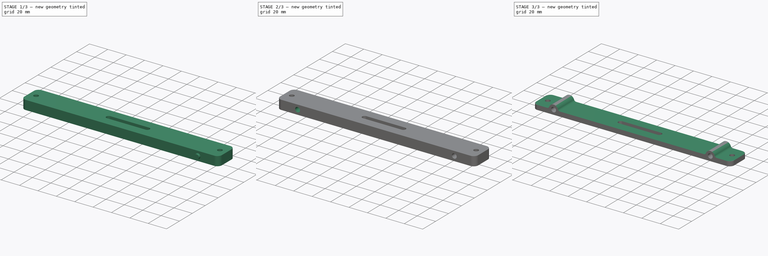
[diagram: build sequence overview — one tinted view per stage of 3, left to right]
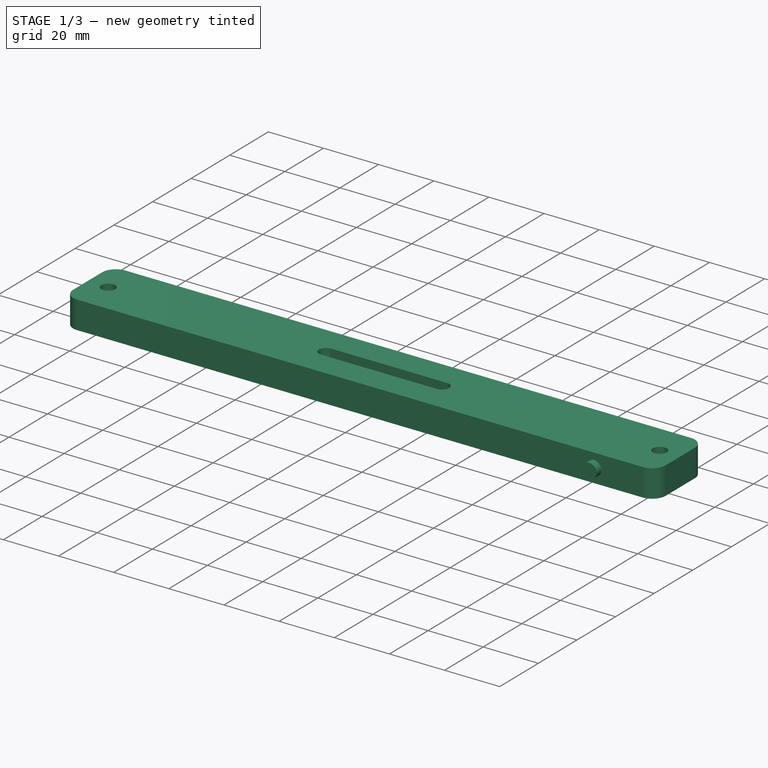
[diagram: stage 1 of 3 — iso view after this stage's code; geometry added in this stage tinted green]
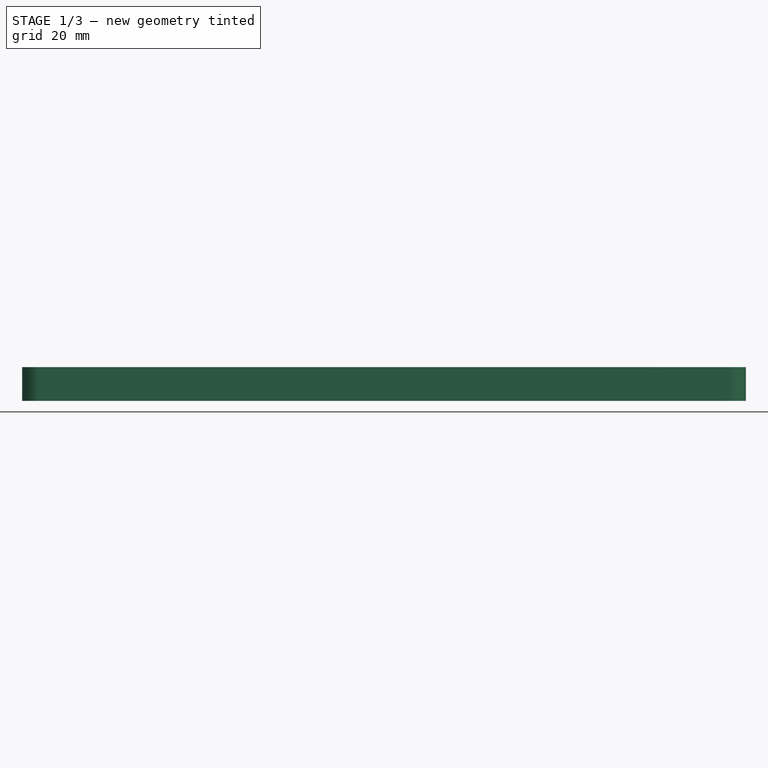
[diagram: stage 1 of 3 — front view after this stage's code; geometry added in this stage tinted green]
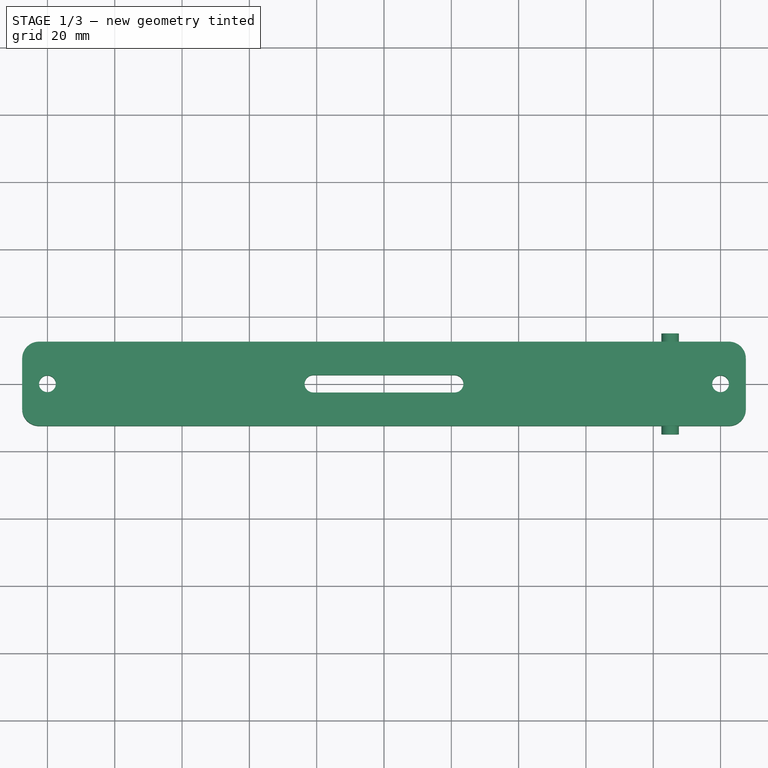
[diagram: stage 1 of 3 — top view after this stage's code; geometry added in this stage tinted green]
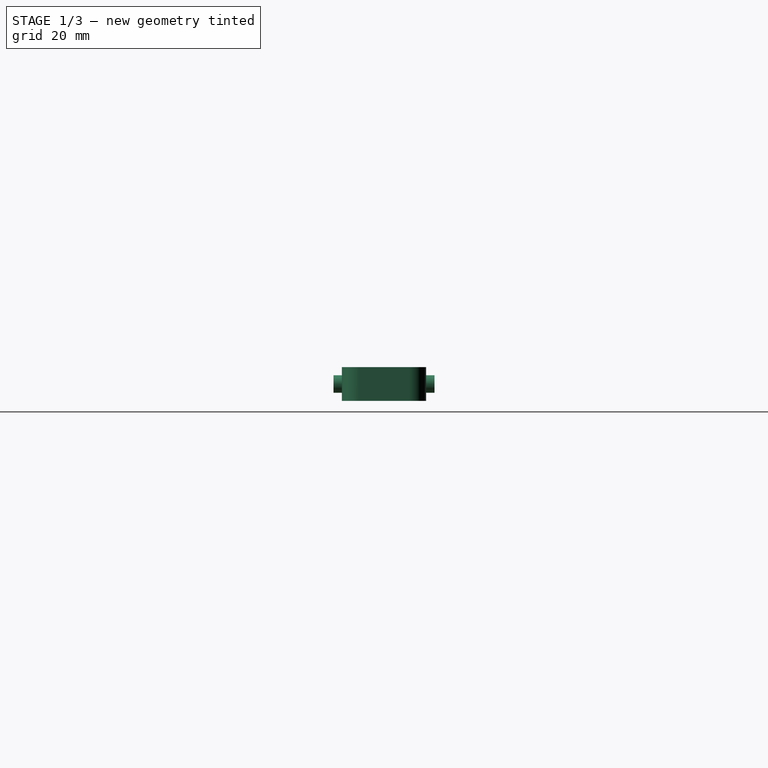
[diagram: stage 1 of 3 — right view after this stage's code; geometry added in this stage tinted green]
FCSTD DOCUMENT  (FreeCAD 0.21R33771 (Git))
Label: SFT-Mk5-Yoke
License: Public Domain
LicenseURL: https://en.wikipedia.org/wiki/Public_domain
objects: PartDesign::Line×4, Part::Cut×3, Sketcher::SketchObject×2, Part::Extrusion×2, Part::Cylinder×2, PartDesign::CoordinateSystem×1, App::Part×1
note: 14 computed .brp shape members not serialized (recipe doc carries the construction recipe); baked Part::Feature solids carry a one-line shape summary decoded from their .brp

FEATURE [PartDesign::CoordinateSystem] LCS_Origin  label="Slot AP"
  AttacherType = Attacher::AttachEngine3D
  AttachmentOffset = pos=(20,0,0) rot=(0,0,1;0rad)
  MapMode = 2
  Placement = pos=(20,0,0) rot=(0,0,1;0rad)
  Support = -> [X_Axis]
FEATURE [Sketcher::SketchObject] Sketch  label="Profile"
  FullyConstrained = true
  MapMode = 5
  Support = -> [XY_Plane]
  sketch-geometry (14):
    g0: LineSegment StartX=-21 StartY=2.6 StartZ=0 EndX=21 EndY=2.6 EndZ=0
    g1: LineSegment StartX=21 StartY=-2.6 StartZ=0 EndX=-21 EndY=-2.6 EndZ=0
    g2: ArcOfCircle CenterX=-21 CenterY=2e-16 CenterZ=0 NormalX=0 NormalY=0 NormalZ=1 AngleXU=0 Radius=2.6 StartAngle=1.5708 EndAngle=4.71239
    g3: ArcOfCircle CenterX=21 CenterY=-2e-16 CenterZ=0 NormalX=0 NormalY=0 NormalZ=1 AngleXU=0 Radius=2.6 StartAngle=4.71239 EndAngle=7.85398
    g4: LineSegment StartX=-102.5 StartY=12.5 StartZ=0 EndX=102.5 EndY=12.5 EndZ=0
    g5: LineSegment StartX=107.5 StartY=7.5 StartZ=0 EndX=107.5 EndY=-7.5 EndZ=0
    g6: LineSegment StartX=102.5 StartY=-12.5 StartZ=0 EndX=-102.5 EndY=-12.5 EndZ=0
    g7: LineSegment StartX=-107.5 StartY=-7.5 StartZ=0 EndX=-107.5 EndY=7.5 EndZ=0
    g8: Circle CenterX=100 CenterY=0 CenterZ=0 NormalX=0 NormalY=0 NormalZ=1 AngleXU=0 Radius=2.5
    g9: Circle CenterX=-100 CenterY=0 CenterZ=0 NormalX=0 NormalY=0 NormalZ=1 AngleXU=0 Radius=2.5
    g10: ArcOfCircle CenterX=102.5 CenterY=-7.5 CenterZ=0 NormalX=0 NormalY=0 NormalZ=1 AngleXU=0 Radius=5 StartAngle=4.71239 EndAngle=6.28319
    g11: ArcOfCircle CenterX=102.5 CenterY=7.5 CenterZ=0 NormalX=0 NormalY=0 NormalZ=1 AngleXU=0 Radius=5 StartAngle=0 EndAngle=1.5708
    g12: ArcOfCircle CenterX=-102.5 CenterY=-7.5 CenterZ=0 NormalX=0 NormalY=0 NormalZ=1 AngleXU=0 Radius=5 StartAngle=3.14159 EndAngle=4.71239
    g13: ArcOfCircle CenterX=-102.5 CenterY=7.5 CenterZ=0 NormalX=0 NormalY=0 NormalZ=1 AngleXU=0 Radius=5 StartAngle=1.5708 EndAngle=3.14159
  constraints (33):
    c: Horizontal(g0)
    c: Horizontal(g1)
    c: Radius(g3) = 2.6
    c: Tangent(g3,g0) = 1.5708
    c: Tangent(g3,g1) = 1.5708
    c: Tangent(g2,g0) = 1.5708
    c: Tangent(g2,g1) = 1.5708
    c: DistanceX(g-1,g3) = 21
    c: Symmetric(g2,g3,g-1)
    c: Horizontal(g4)
    c: Horizontal(g6)
    c: Vertical(g5)
    c: Vertical(g7)
    c: Radius(g8) = 2.5
    c: DistanceX(g8) = 100
    c: Symmetric(g9,g8,g-1)
    c: Equal(g9,g8)
    c: PointOnObject(g9,g-1)
    c: Tangent(g5,g10) = 1.5708
    c: Tangent(g6,g10) = 1.5708
    c: Tangent(g5,g11) = 1.5708
    c: Tangent(g4,g11) = 1.5708
    c: Tangent(g7,g12) = 1.5708
    c: Tangent(g6,g12) = 1.5708
    c: Tangent(g7,g13) = 1.5708
    c: Tangent(g4,g13) = 1.5708
    c: Equal(g13,g12)
    c: Equal(g13,g11)
    c: Equal(g13,g10)
    c: Radius(g13) = 5
    c: DistanceY(g6,g4) = 25
    c: DistanceX(g7,g5) = 215
    c: Symmetric(g11,g12,g-1)
FEATURE [Part::Extrusion] Extrude  label="Pad"
  Base = -> Sketch
  Dir = (0,0,1)
  DirMode = 2
  FaceMakerClass = Part::FaceMakerBullseye
  LengthFwd = 10
  LengthRev = 0
  Solid = true
  Symmetric = false
FEATURE [Part::Cylinder] Cylinder  label="Slider Hole 1"
  Angle = 360
  AttacherType = Attacher::AttachEngine3D
  FirstAngle = 0
  Height = 30
  Placement = pos=(85,15,5) rot=(1,0,0;1.5708rad)
  Radius = 2.6
  SecondAngle = 0
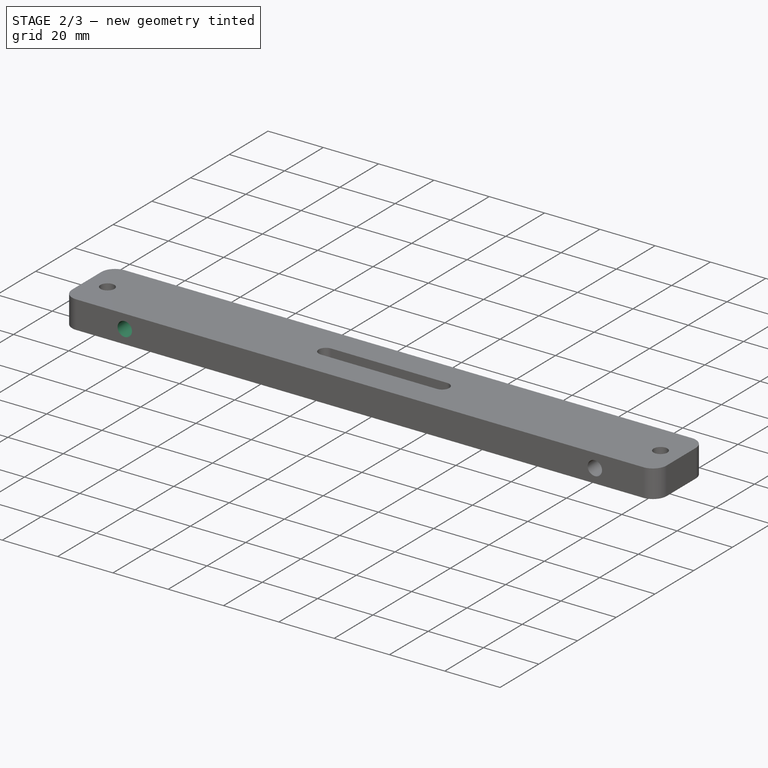
[diagram: stage 2 of 3 — iso view after this stage's code; geometry added in this stage tinted green]
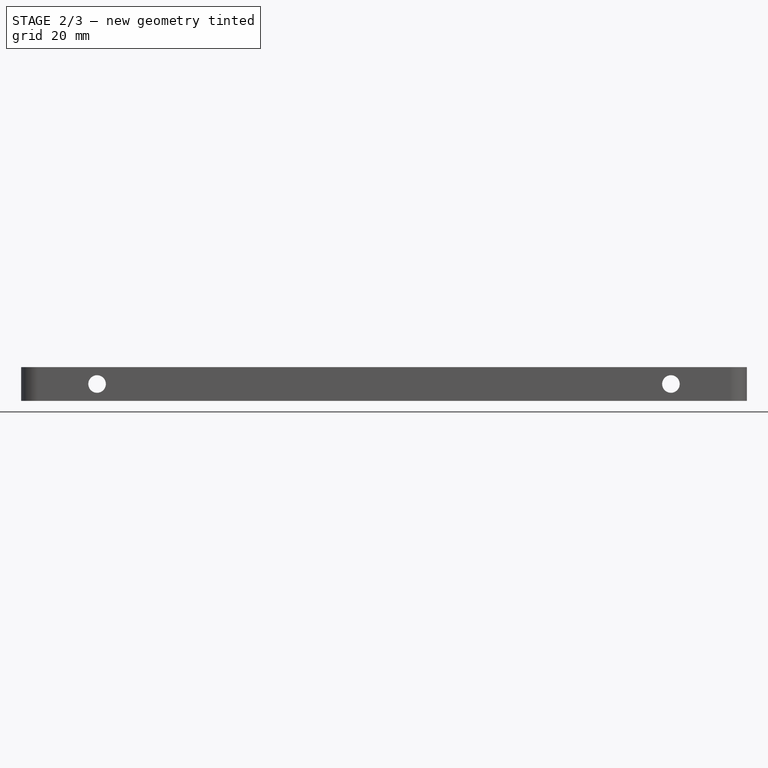
[diagram: stage 2 of 3 — front view after this stage's code; geometry added in this stage tinted green]
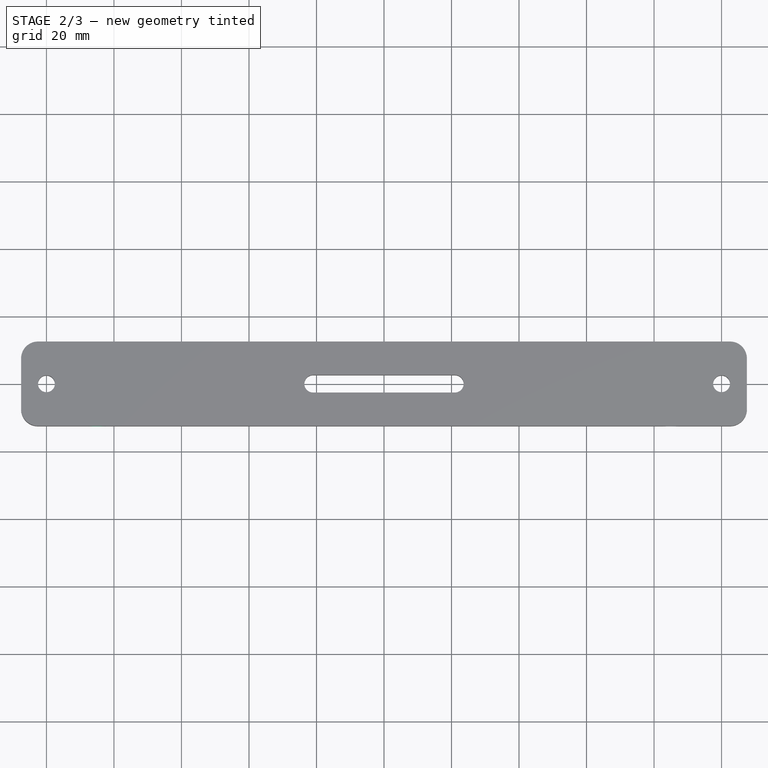
[diagram: stage 2 of 3 — top view after this stage's code; geometry added in this stage tinted green]
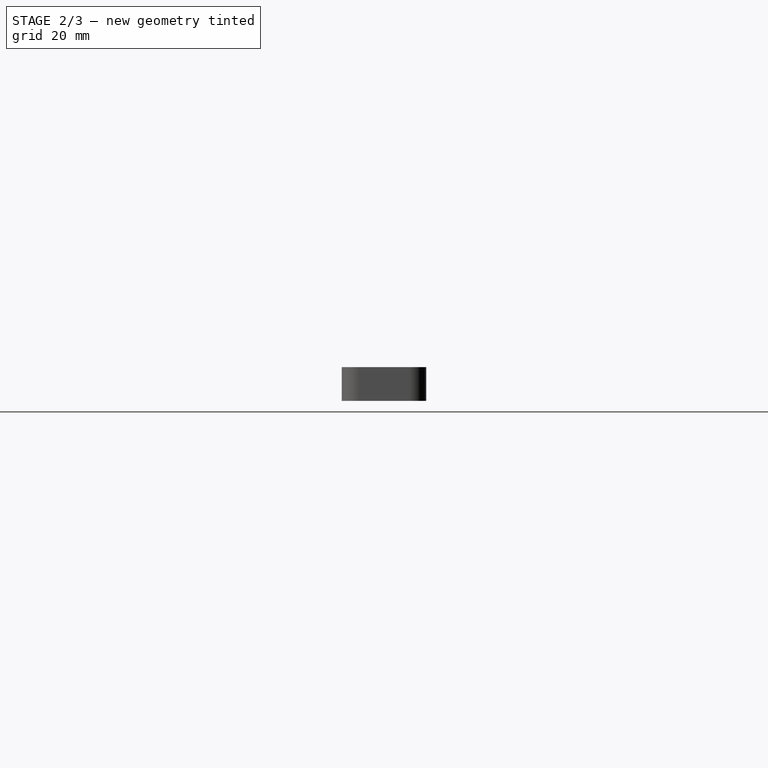
[diagram: stage 2 of 3 — right view after this stage's code; geometry added in this stage tinted green]
FEATURE [Part::Cylinder] Cylinder001  label="Slider Hole 2"
  Angle = 360
  AttacherType = Attacher::AttachEngine3D
  FirstAngle = 0
  Height = 30
  Placement = pos=(-85,15,5) rot=(1,0,0;1.5708rad)
  Radius = 2.6
  SecondAngle = 0
FEATURE [Part::Cut] Cut
  Base = -> Extrude
  Tool = -> Cylinder
FEATURE [Part::Cut] Cut001
  Base = -> Cut
  Tool = -> Cylinder001
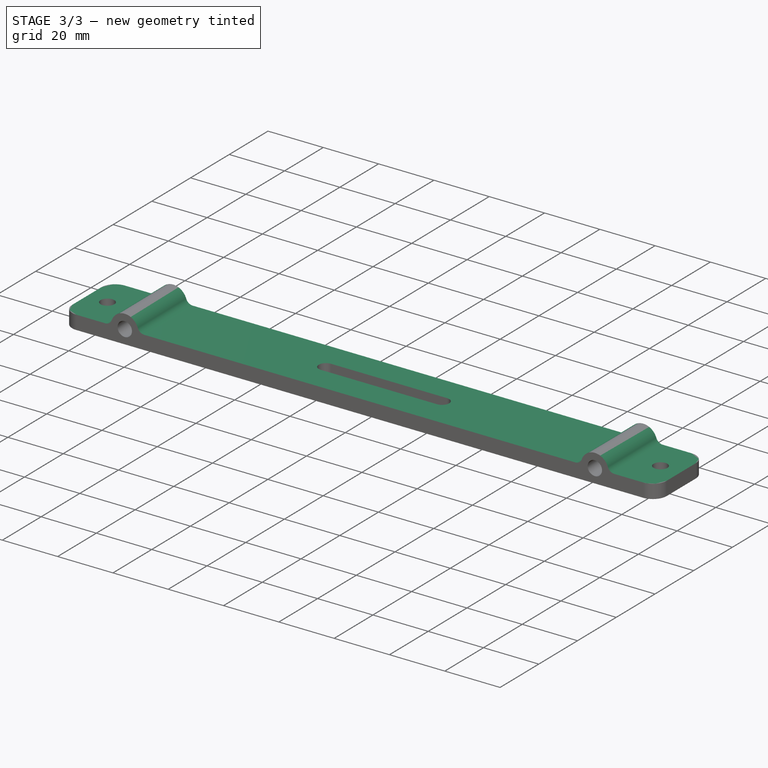
[diagram: stage 3 of 3 — iso view after this stage's code; geometry added in this stage tinted green]
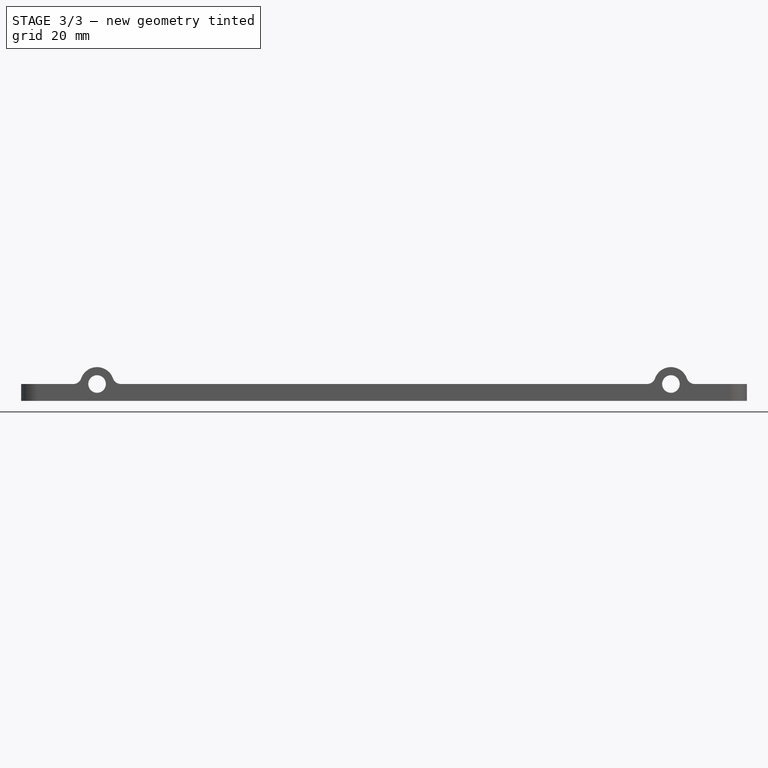
[diagram: stage 3 of 3 — front view after this stage's code; geometry added in this stage tinted green]
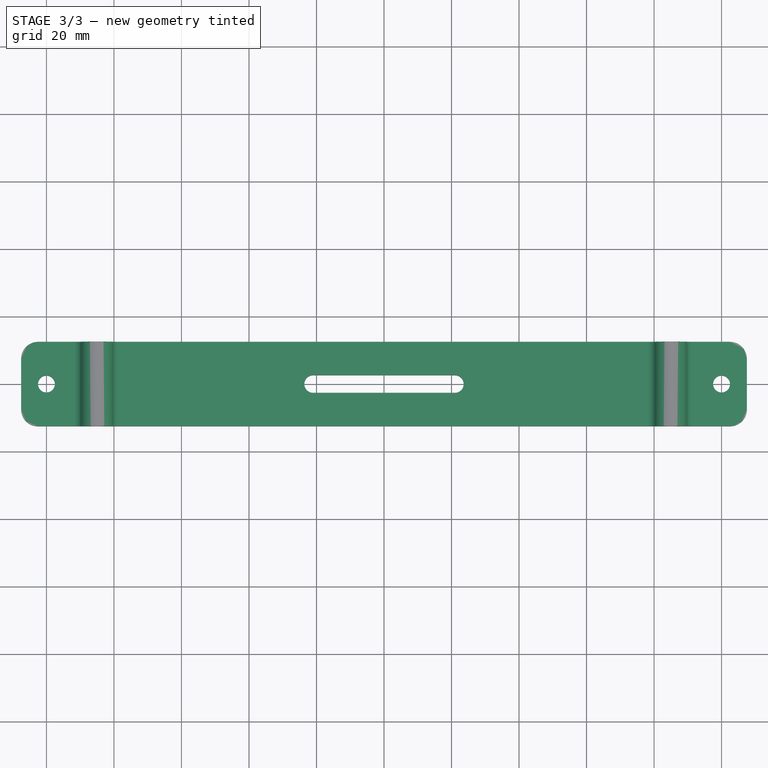
[diagram: stage 3 of 3 — top view after this stage's code; geometry added in this stage tinted green]
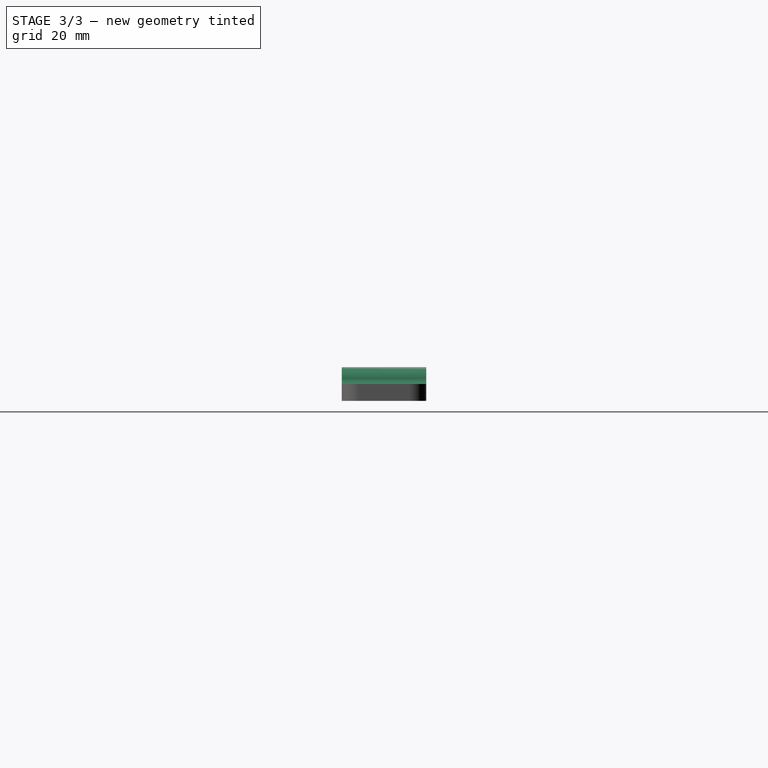
[diagram: stage 3 of 3 — right view after this stage's code; geometry added in this stage tinted green]
FEATURE [PartDesign::Line] HoleAxis_1  label="Slider Axis 1"
  AttacherType = Attacher::AttachEngineLine
  Length = 7.32715
  MapMode = 19
  Placement = pos=(85,-12.5,5) rot=(-1,0,0;1.5708rad)
  ResizeMode = 1
  Support = -> [Cut001]
FEATURE [PartDesign::Line] HoleAxis_2  label="Slider Axis 2"
  AttacherType = Attacher::AttachEngineLine
  Length = 7.32715
  MapMode = 19
  Placement = pos=(-85,-12.5,5) rot=(-1,0,0;1.5708rad)
  ResizeMode = 1
  Support = -> [Cut001]
FEATURE [PartDesign::Line] HoleAxis_3  label="Pushrod Axis Left"
  AttacherType = Attacher::AttachEngineLine
  Length = 7.04534
  MapMode = 19
  Placement = pos=(-100,0,10) rot=(0,0,1;0rad)
  ResizeMode = 1
  Support = -> [Cut001]
FEATURE [PartDesign::Line] HoleAxis_4  label="Pushrod Axis Right"
  AttacherType = Attacher::AttachEngineLine
  Length = 7.04534
  MapMode = 19
  Placement = pos=(100,0,10) rot=(0,0,1;0rad)
  ResizeMode = 1
  Support = -> [Cut001]
FEATURE [Sketcher::SketchObject] Sketch001  label="Pushrod Cut Sketch"
  FullyConstrained = true
  MapMode = 5
  Placement = pos=(0,-12.5,0) rot=(1,0,0;1.5708rad)
  Support = -> [Cut001]
  sketch-geometry (12):
    g0: ArcOfCircle CenterX=85 CenterY=5 CenterZ=0 NormalX=0 NormalY=0 NormalZ=1 AngleXU=0 Radius=5 StartAngle=0.339837 EndAngle=2.80176
    g1: ArcOfCircle CenterX=92.0711 CenterY=7.5 CenterZ=0 NormalX=0 NormalY=0 NormalZ=1 AngleXU=0 Radius=2.5 StartAngle=3.48143 EndAngle=4.71239
    g2: LineSegment StartX=92.0711 StartY=5 StartZ=0 EndX=110 EndY=5 EndZ=0
    g3: LineSegment StartX=-110 StartY=15 StartZ=0 EndX=110 EndY=15 EndZ=0
    g4: LineSegment StartX=110 StartY=15 StartZ=0 EndX=110 EndY=5 EndZ=0
    g5: ArcOfCircle CenterX=-85 CenterY=5 CenterZ=0 NormalX=0 NormalY=0 NormalZ=1 AngleXU=0 Radius=5 StartAngle=0.339837 EndAngle=2.80176
    g6: ArcOfCircle CenterX=-92.0711 CenterY=7.5 CenterZ=0 NormalX=0 NormalY=0 NormalZ=1 AngleXU=0 Radius=2.5 StartAngle=4.71239 EndAngle=5.94335
    g7: LineSegment StartX=-92.0711 StartY=5 StartZ=0 EndX=-110 EndY=5 EndZ=0
    g8: LineSegment StartX=-110 StartY=5 StartZ=0 EndX=-110 EndY=15 EndZ=0
    g9: ArcOfCircle CenterX=-77.9289 CenterY=7.5 CenterZ=0 NormalX=0 NormalY=0 NormalZ=1 AngleXU=0 Radius=2.5 StartAngle=3.48143 EndAngle=4.71239
    g10: ArcOfCircle CenterX=77.9289 CenterY=7.5 CenterZ=0 NormalX=0 NormalY=0 NormalZ=1 AngleXU=0 Radius=2.5 StartAngle=4.71239 EndAngle=5.94335
    g11: LineSegment StartX=-77.9289 StartY=5 StartZ=0 EndX=77.9289 EndY=5 EndZ=0
  constraints (32):
    c: Tangent(g1,g0) = 1.5708
    c: Horizontal(g2)
    c: Tangent(g2,g1) = -1.5708
    c: Horizontal(g3)
    c: Coincident(g4,g3)
    c: Coincident(g4,g2)
    c: Vertical(g4)
    c: Radius(g5) = 5
    c: Tangent(g6,g5) = 1.5708
    c: Radius(g6) = 2.5
    c: Horizontal(g7)
    c: Coincident(g8,g7)
    c: Vertical(g8)
    c: Tangent(g7,g6) = 1.5708
    c: Coincident(g3,g8)
    c: DistanceX(g3) = -110
    c: DistanceY(g3) = 15
    c: DistanceX(g3,g3) = 220
    c: Symmetric(g0,g5,g-2)
    c: Equal(g1,g6)
    c: Equal(g5,g0)
    c: DistanceX(g5) = -85
    c: DistanceY(g8,g8) = 10
    c: Equal(g4,g8)
    c: DistanceY(g5) = 5
    c: Equal(g9,g6)
    c: Tangent(g9,g5) = 1.5708
    c: Equal(g10,g1)
    c: Tangent(g10,g0) = 1.5708
    c: Tangent(g11,g10) = -1.5708
    c: Tangent(g11,g9) = -1.5708
    c: Tangent(g11,g7)
FEATURE [Part::Extrusion] Extrude001  label="Pushrod Pad Cutter"
  Base = -> Sketch001
  Dir = (0,-1,2e-16)
  DirMode = 2
  FaceMakerClass = Part::FaceMakerBullseye
  LengthFwd = 30
  LengthRev = 0
  Reversed = true
  Solid = true
  Symmetric = false
FEATURE [Part::Cut] Cut002
  Base = -> Cut001
  Tool = -> Extrude001
FEATURE [App::Part] Yoke
  Group = -> [LCS_Origin,Sketch,Extrude,Cylinder,Cylinder001,Cut,Cut001,HoleAxis_1,HoleAxis_2,HoleAxis_3,HoleAxis_4,Extrude001,Sketch001,Cut002]
  Origin = -> Origin
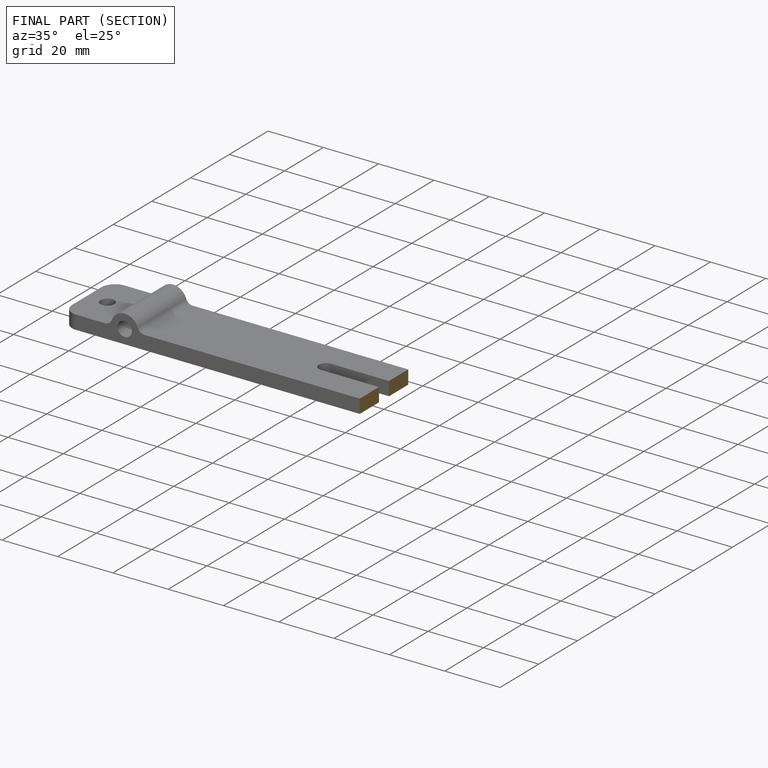
[diagram: finished part — half-section view (interior)]
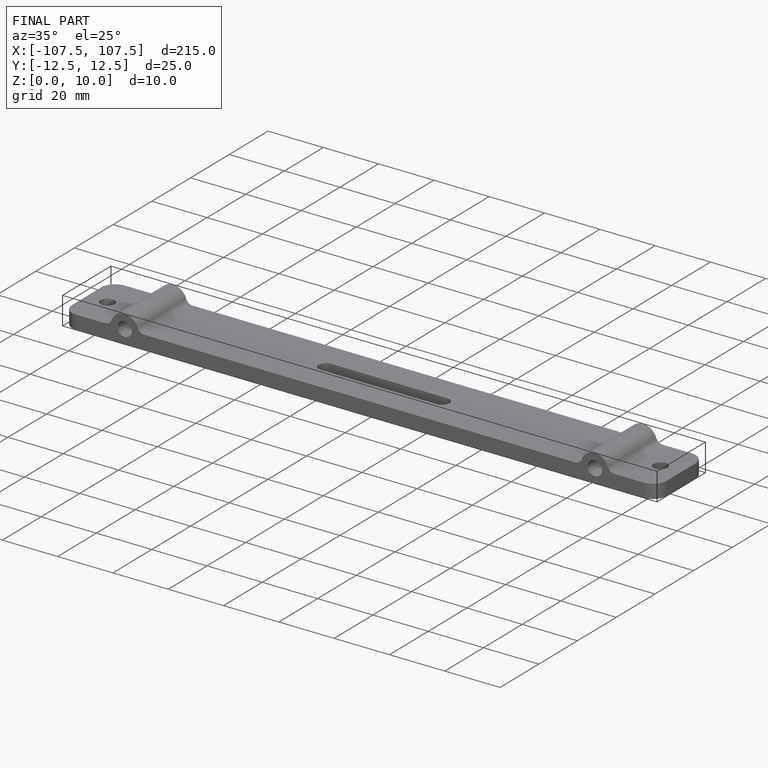
[diagram: finished part — iso view with bounding-box wireframe]
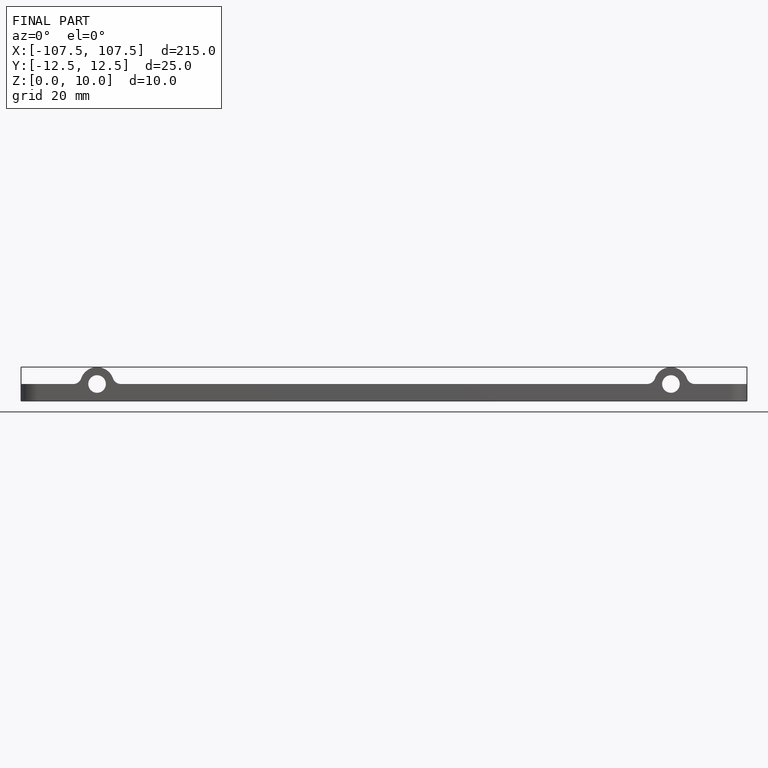
[diagram: finished part — front view with bounding-box wireframe]
